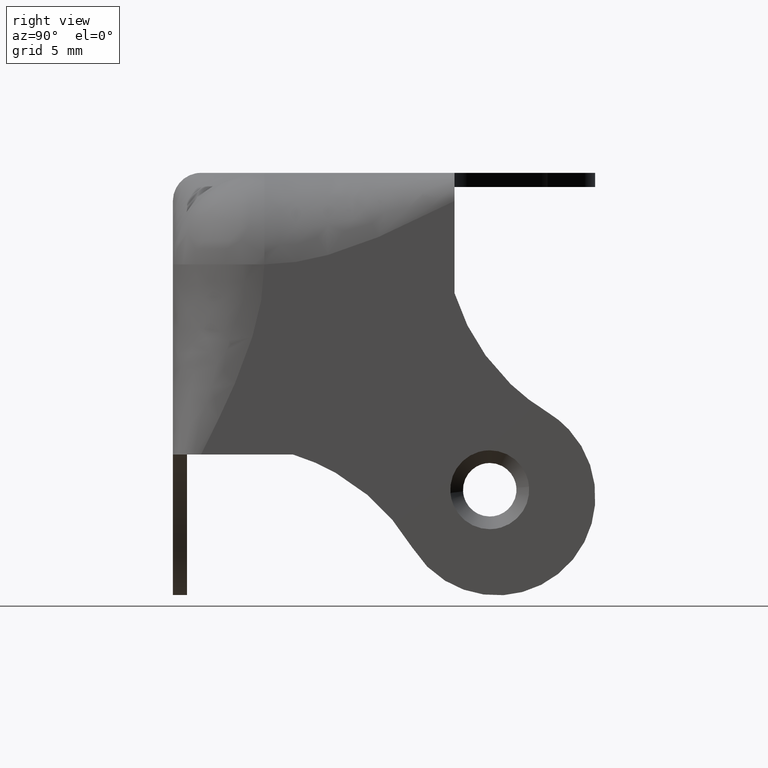
[diagram: clean part render]
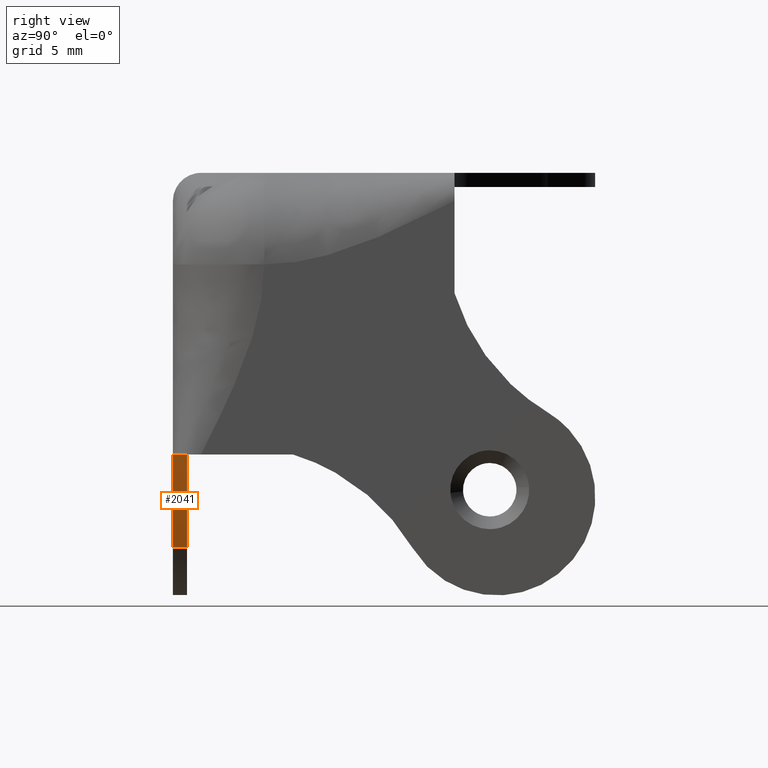
[diagram: same view with one face highlighted and labeled with its STEP entity id]
A machine part, right view. The second image highlights one B-rep face of the part: STEP entity #2041.
In plain terms, the highlighted face is a freeform B-spline surface patch.
Its self-contained STEP definition (entity closure, byte-faithful):
#1897=CARTESIAN_POINT('',(-8.539727915193989,0.0,10.000000402395100));
#1898=VERTEX_POINT('',#1897);
#1928=CARTESIAN_POINT('',(-17.002200152241951,0.0,3.390789977538885));
#1929=VERTEX_POINT('',#1928);
#1947=CARTESIAN_POINT('',(-8.539727915193994,0.0,10.000000402395109));
#1948=CARTESIAN_POINT('',(-14.037658483270633,0.0,8.317278277823963));
#1949=CARTESIAN_POINT('',(-17.002200152241951,0.0,3.390789977538885));
#1957=(BOUNDED_CURVE()B_SPLINE_CURVE(2,(#1947,#1948,#1949),.UNSPECIFIED.,.F.,.U.)CURVE()GEOMETRIC_REPRESENTATION_ITEM()QUASI_UNIFORM_CURVE()RATIONAL_B_SPLINE_CURVE((1.0,0.933752821567507,1.0))REPRESENTATION_ITEM(''));
#1958=EDGE_CURVE('',#1898,#1929,#1957,.T.);
#1981=CARTESIAN_POINT('',(-8.539727915193989,1.0,10.000000402395100));
#1982=VERTEX_POINT('',#1981);
#1983=CARTESIAN_POINT('',(-8.539727915193989,1.0,10.000000402395100));
#1984=CARTESIAN_POINT('',(-8.539727915193989,0.0,10.000000402395100));
#1985=QUASI_UNIFORM_CURVE('',1,(#1983,#1984),.UNSPECIFIED.,.F.,.U.);
#1986=EDGE_CURVE('',#1982,#1898,#1985,.T.);
#2003=CARTESIAN_POINT('',(-17.207362476828528,1.025000000000000,3.039135215478398));
#2004=CARTESIAN_POINT('',(-17.207362476828528,-0.025625000000000,3.039135215478398));
#2005=CARTESIAN_POINT('',(-14.107748277724983,1.025000000000000,8.521590524075430));
#2006=CARTESIAN_POINT('',(-14.107748277724983,-0.025625000000000,8.521590524075430));
#2007=CARTESIAN_POINT('',(-8.023360957831059,1.025000000000001,10.147983876116120));
#2008=CARTESIAN_POINT('',(-8.023360957831059,-0.025625000000000,10.147983876116120));
#2016=(BOUNDED_SURFACE()B_SPLINE_SURFACE(1,2,((#2003,#2005,#2007),(#2004,#2006,#2008)),.UNSPECIFIED.,.F.,.F.,.U.)B_SPLINE_SURFACE_WITH_KNOTS((2,2),(3,3),(0.0,1.0),(0.0,12.084955916887321),.UNSPECIFIED.)GEOMETRIC_REPRESENTATION_ITEM()RATIONAL_B_SPLINE_SURFACE(((1.0,0.918066637563324,0.991430514511206),(1.0,0.918066637563324,0.991430514511206)))REPRESENTATION_ITEM('')SURFACE());
#2017=ORIENTED_EDGE('',*,*,#1958,.T.);
#2018=CARTESIAN_POINT('',(-17.002200152241951,1.0,3.390789977538885));
#2019=VERTEX_POINT('',#2018);
#2020=CARTESIAN_POINT('',(-17.002200152241951,1.0,3.390789977538885));
#2021=CARTESIAN_POINT('',(-17.002200152241951,0.0,3.390789977538885));
#2022=QUASI_UNIFORM_CURVE('',1,(#2020,#2021),.UNSPECIFIED.,.F.,.U.);
#2023=EDGE_CURVE('',#2019,#1929,#2022,.T.);
#2024=ORIENTED_EDGE('',*,*,#2023,.F.);
#2025=CARTESIAN_POINT('',(-8.539727915193994,1.0,10.000000402395109));
#2026=CARTESIAN_POINT('',(-14.037658483270633,1.0,8.317278277823963));
#2027=CARTESIAN_POINT('',(-17.002200152241951,1.0,3.390789977538885));
#2035=(BOUNDED_CURVE()B_SPLINE_CURVE(2,(#2025,#2026,#2027),.UNSPECIFIED.,.F.,.U.)CURVE()GEOMETRIC_REPRESENTATION_ITEM()QUASI_UNIFORM_CURVE()RATIONAL_B_SPLINE_CURVE((1.0,0.933752821567507,1.0))REPRESENTATION_ITEM(''));
#2036=EDGE_CURVE('',#1982,#2019,#2035,.T.);
#2037=ORIENTED_EDGE('',*,*,#2036,.F.);
#2038=ORIENTED_EDGE('',*,*,#1986,.T.);
#2039=EDGE_LOOP('',(#2017,#2024,#2037,#2038));
#2040=FACE_OUTER_BOUND('',#2039,.T.);
#2041=ADVANCED_FACE('',(#2040),#2016,.F.);